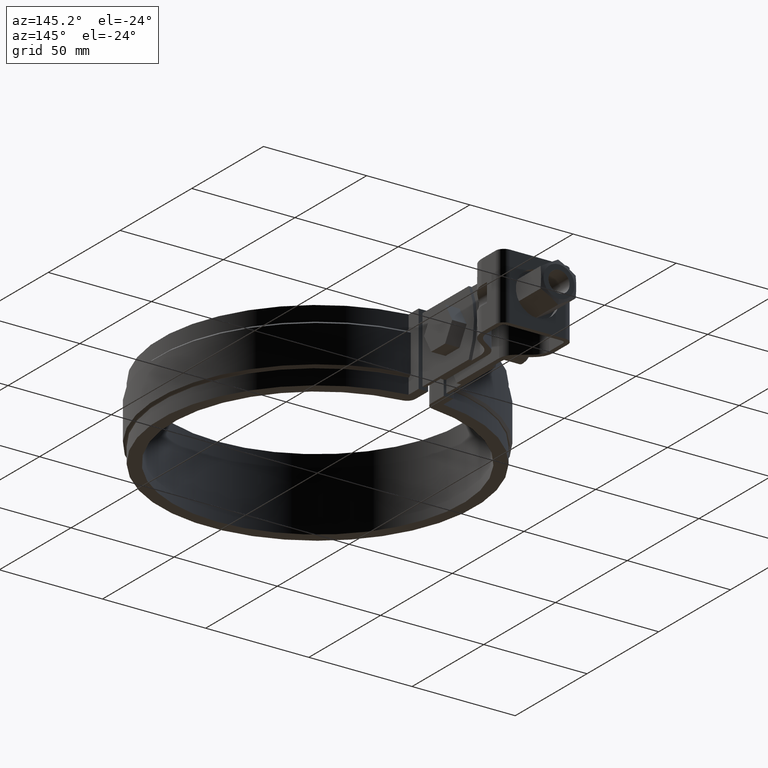
[diagram: clean part render]
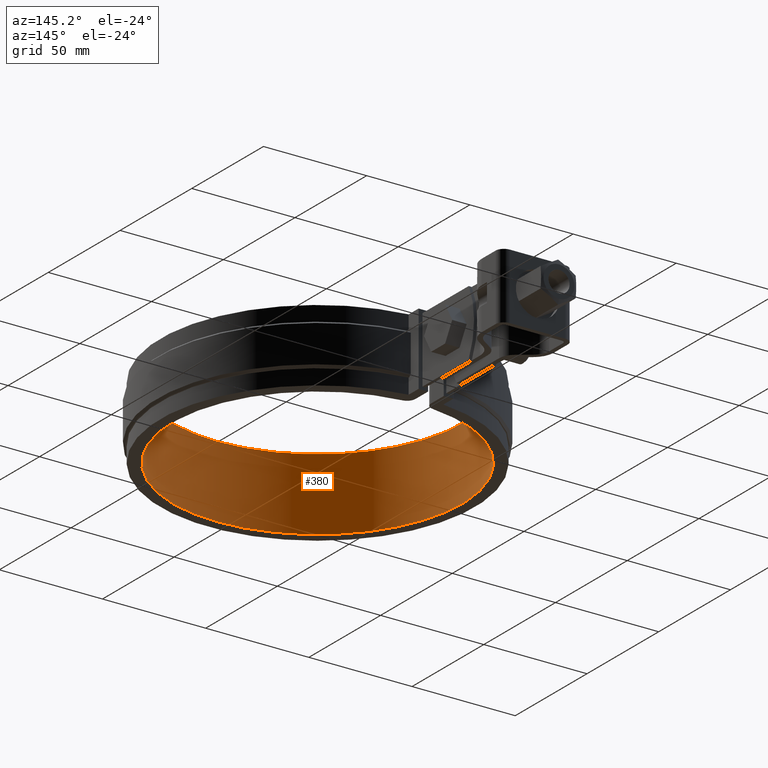
[diagram: same view with one face highlighted and labeled with its STEP entity id]
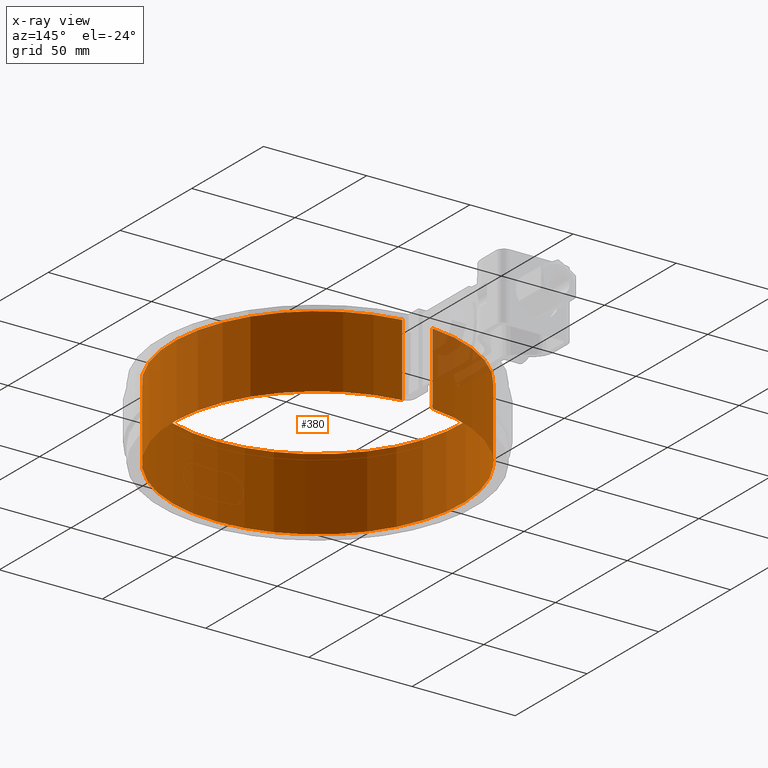
[diagram: x-ray of the same camera — body ghosted, the highlighted face saturated]
A machine part, auxiliary view. The second image highlights one B-rep face of the part: STEP entity #380.
The next image is the same camera in x-ray: the body ghosted, the highlighted face saturated — about 4% of this face is hidden behind the body in this view.
In plain terms, the highlighted cylindrical surface (partial cylindrical patch) has radius 70 mm, axis along (0, 0, -1).
Its self-contained STEP definition (entity closure, byte-faithful):
#380 = ADVANCED_FACE( '', ( #633 ), #634, .F. );
#633 = FACE_OUTER_BOUND( '', #1768, .T. );
#634 = CYLINDRICAL_SURFACE( '', #1769, 70.0000000000000 );
#1768 = EDGE_LOOP( '', ( #4081, #4082, #4083, #4084 ) );
#1769 = AXIS2_PLACEMENT_3D( '', #4085, #4086, #4087 );
#4081 = ORIENTED_EDGE( '', *, *, #5167, .F. );
#4082 = ORIENTED_EDGE( '', *, *, #5177, .F. );
#4083 = ORIENTED_EDGE( '', *, *, #5172, .T. );
#4084 = ORIENTED_EDGE( '', *, *, #5176, .T. );
#4085 = CARTESIAN_POINT( '', ( 0.000000000000000, 0.000000000000000, -33.5000000000000 ) );
#4086 = DIRECTION( '', ( 0.000000000000000, 0.000000000000000, -1.00000000000000 ) );
#4087 = DIRECTION( '', ( 0.000000000000000, 1.00000000000000, 0.000000000000000 ) );
#5167 = EDGE_CURVE( '', #5777, #5779, #5780, .T. );
#5172 = EDGE_CURVE( '', #5786, #5784, #5787, .T. );
#5176 = EDGE_CURVE( '', #5784, #5779, #5792, .T. );
#5177 = EDGE_CURVE( '', #5786, #5777, #5793, .T. );
#5777 = VERTEX_POINT( '', #8457 );
#5779 = VERTEX_POINT( '', #8459 );
#5780 = CIRCLE( '', #8460, 70.0000000000000 );
#5784 = VERTEX_POINT( '', #8466 );
#5786 = VERTEX_POINT( '', #8468 );
#5787 = CIRCLE( '', #8469, 70.0000000000000 );
#5792 = LINE( '', #8476, #8477 );
#5793 = LINE( '', #8478, #8479 );
#8457 = CARTESIAN_POINT( '', ( 7.37837837837830, 69.6100533867449, 1.50000000000000 ) );
#8459 = CARTESIAN_POINT( '', ( -7.37837837837833, 69.6100533867449, 1.50000000000000 ) );
#8460 = AXIS2_PLACEMENT_3D( '', #9547, #9548, #9549 );
#8466 = CARTESIAN_POINT( '', ( -7.37837837837833, 69.6100533867449, -33.5000000000000 ) );
#8468 = CARTESIAN_POINT( '', ( 7.37837837837830, 69.6100533867449, -33.5000000000000 ) );
#8469 = AXIS2_PLACEMENT_3D( '', #9558, #9559, #9560 );
#8476 = CARTESIAN_POINT( '', ( -7.37837837837833, 69.6100533867449, -33.5000000000000 ) );
#8477 = VECTOR( '', #9566, 1000.00000000000 );
#8478 = CARTESIAN_POINT( '', ( 7.37837837837830, 69.6100533867449, -33.5000000000000 ) );
#8479 = VECTOR( '', #9567, 1000.00000000000 );
#9547 = CARTESIAN_POINT( '', ( 0.000000000000000, 0.000000000000000, 1.50000000000000 ) );
#9548 = DIRECTION( '', ( 0.000000000000000, 0.000000000000000, -1.00000000000000 ) );
#9549 = DIRECTION( '', ( 1.00000000000000, 0.000000000000000, 0.000000000000000 ) );
#9558 = CARTESIAN_POINT( '', ( 0.000000000000000, 0.000000000000000, -33.5000000000000 ) );
#9559 = DIRECTION( '', ( 0.000000000000000, 0.000000000000000, -1.00000000000000 ) );
#9560 = DIRECTION( '', ( 1.00000000000000, 0.000000000000000, 0.000000000000000 ) );
#9566 = DIRECTION( '', ( 0.000000000000000, 0.000000000000000, 1.00000000000000 ) );
#9567 = DIRECTION( '', ( 0.000000000000000, 0.000000000000000, 1.00000000000000 ) );